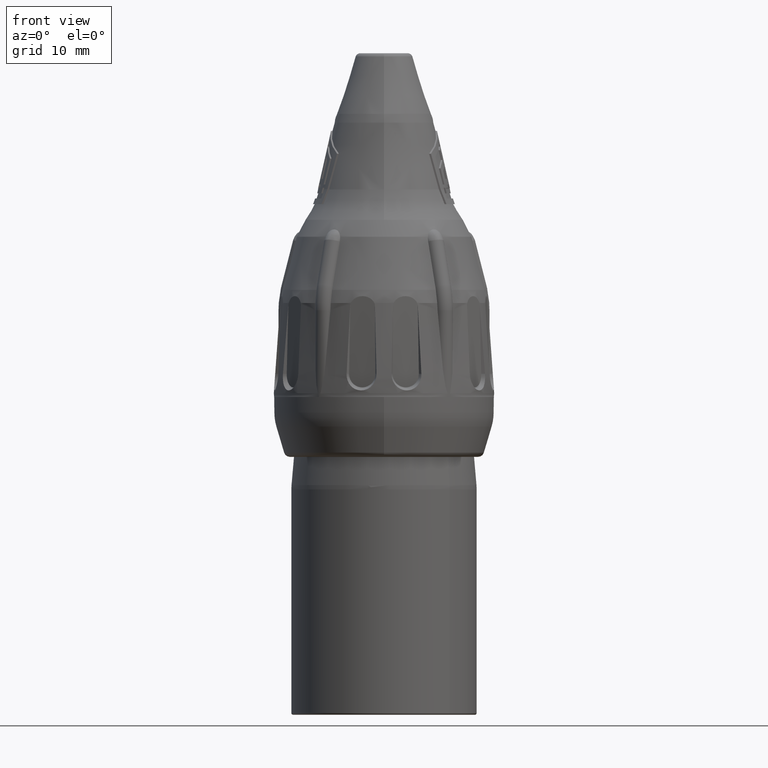
[diagram: clean part render]
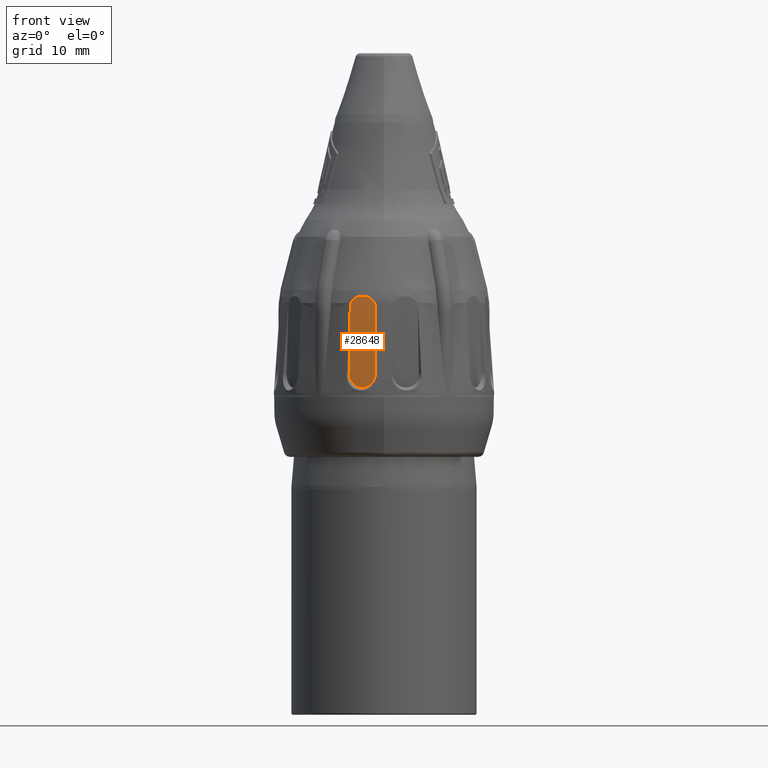
[diagram: same view with one face highlighted and labeled with its STEP entity id]
A machine part, front view. The second image highlights one B-rep face of the part: STEP entity #28648.
In plain terms, the highlighted planar face has unit normal (0.2079, 0.9779, -0.0209).
Its self-contained STEP definition (entity closure, byte-faithful):
#7028=CARTESIAN_POINT('',(-3.454664603485E0,-1.005264313082E1,
1.299690952390E1));
#7029=CARTESIAN_POINT('',(-3.444815660711E0,-1.005423184033E1,
1.302047937297E1));
#7030=CARTESIAN_POINT('',(-3.425061216991E0,-1.005742965509E1,
1.306722803874E1));
#7031=CARTESIAN_POINT('',(-3.405185936396E0,-1.006066997218E1,
1.311319138269E1));
#7032=CARTESIAN_POINT('',(-3.395216014916E0,-1.006230121728E1,
1.313597576435E1));
#7066=CARTESIAN_POINT('',(-9.910224505909E-1,-1.057332833490E1,
1.313597576435E1));
#7067=CARTESIAN_POINT('',(-9.812503105389E-1,-1.057589342830E1,
1.311318980547E1));
#7068=CARTESIAN_POINT('',(-9.617747332475E-1,-1.058101742830E1,
1.306722487191E1));
#7069=CARTESIAN_POINT('',(-9.424281580994E-1,-1.058613075787E1,
1.302047778412E1));
#7070=CARTESIAN_POINT('',(-9.327851648771E-1,-1.058868515324E1,
1.299690952390E1));
#9335=DIRECTION('',(7.472171850627E-3,-2.299698029162E-2,-9.997076100267E-1));
#9336=VECTOR('',#9335,7.104095729760E0);
#9337=CARTESIAN_POINT('',(-9.327851648771E-1,-1.058868515324E1,
1.299690952390E1));
#9338=LINE('',#9337,#9336);
#9339=CARTESIAN_POINT('',(-8.797021407411E-1,-1.075205790273E1,
5.894890960499E0));
#9340=CARTESIAN_POINT('',(-8.784835652471E-1,-1.075580829246E1,
5.731856809378E0));
#9341=CARTESIAN_POINT('',(-9.342679843016E-1,-1.075151779103E1,
5.378513405057E0));
#9342=CARTESIAN_POINT('',(-1.242207838608E0,-1.069668831225E1,
4.882358072112E0));
#9343=CARTESIAN_POINT('',(-1.729548920762E0,-1.059995019305E1,
4.562515385820E0));
#9344=CARTESIAN_POINT('',(-2.230846173197E0,-1.049530607604E1,
4.473330007023E0));
#9345=CARTESIAN_POINT('',(-2.731366597958E0,-1.038700727216E1,
4.562515385820E0));
#9346=CARTESIAN_POINT('',(-3.215921767745E0,-1.027716246575E1,
4.882358072112E0));
#9347=CARTESIAN_POINT('',(-3.519539981014E0,-1.020200126443E1,
5.378513405057E0));
#9348=CARTESIAN_POINT('',(-3.572246687798E0,-1.018323126518E1,
5.731856809378E0));
#9349=CARTESIAN_POINT('',(-3.569608042759E0,-1.018030075298E1,
5.894890960499E0));
#9351=DIRECTION('',(1.617988321756E-2,1.796958078989E-2,9.997076100267E-1));
#9352=VECTOR('',#9351,7.104095729760E0);
#9353=CARTESIAN_POINT('',(-3.569608042759E0,-1.018030075298E1,
5.894890960499E0));
#9354=LINE('',#9353,#9352);
#9355=CARTESIAN_POINT('',(-9.910224505909E-1,-1.057332833490E1,
1.313597576435E1));
#9356=CARTESIAN_POINT('',(-1.031544126002E0,-1.056269178223E1,
1.323046123273E1));
#9357=CARTESIAN_POINT('',(-1.140632148409E0,-1.053572526616E1,
1.340693305953E1));
#9358=CARTESIAN_POINT('',(-1.414382547363E0,-1.047246740446E1,
1.364370271873E1));
#9359=CARTESIAN_POINT('',(-1.769421771416E0,-1.039360930559E1,
1.380210500159E1));
#9360=CARTESIAN_POINT('',(-2.188817480221E0,-1.030318173962E1,
1.386198159113E1));
#9361=CARTESIAN_POINT('',(-2.605309597416E0,-1.021590539985E1,
1.380352753407E1));
#9362=CARTESIAN_POINT('',(-2.964785194291E0,-1.014287372973E1,
1.364582361173E1));
#9363=CARTESIAN_POINT('',(-3.243406227746E0,-1.008876475671E1,
1.340703024296E1));
#9364=CARTESIAN_POINT('',(-3.353914739726E0,-1.006905879331E1,
1.323036206609E1));
#9365=CARTESIAN_POINT('',(-3.395216014916E0,-1.006230121728E1,
1.313597576435E1));
#13171=VERTEX_POINT('',#9339);
#13172=VERTEX_POINT('',#9349);
#13173=CARTESIAN_POINT('',(-3.454664603485E0,-1.005264313082E1,
1.299690952390E1));
#13174=VERTEX_POINT('',#13173);
#13175=CARTESIAN_POINT('',(-9.327851648771E-1,-1.058868515324E1,
1.299690952390E1));
#13176=VERTEX_POINT('',#13175);
#13225=VERTEX_POINT('',#7032);
#13226=VERTEX_POINT('',#7066);
#28632=CARTESIAN_POINT('',(-4.592604815017E0,-9.962856076467E0,
5.894890960499E0));
#28633=DIRECTION('',(2.078660923482E-1,9.779330768009E-1,-2.094241988336E-2));
#28634=DIRECTION('',(-9.781476007338E-1,2.079116908178E-1,0.E0));
#28635=AXIS2_PLACEMENT_3D('',#28632,#28633,#28634);
#28636=PLANE('',#28635);
#28637=ORIENTED_EDGE('',*,*,#24850,.T.);
#28639=ORIENTED_EDGE('',*,*,#28638,.T.);
#28641=ORIENTED_EDGE('',*,*,#28640,.T.);
#28643=ORIENTED_EDGE('',*,*,#28642,.T.);
#28644=ORIENTED_EDGE('',*,*,#24842,.T.);
#28645=ORIENTED_EDGE('',*,*,#25107,.F.);
#28646=EDGE_LOOP('',(#28637,#28639,#28641,#28643,#28644,#28645));
#28647=FACE_OUTER_BOUND('',#28646,.F.);
#7033=B_SPLINE_CURVE_WITH_KNOTS('',3,(#7028,#7029,#7030,#7031,#7032),
.UNSPECIFIED.,.F.,.F.,(4,1,4),(0.E0,5.E-1,1.E0),.UNSPECIFIED.);
#7071=B_SPLINE_CURVE_WITH_KNOTS('',3,(#7066,#7067,#7068,#7069,#7070),
.UNSPECIFIED.,.F.,.F.,(4,1,4),(0.E0,5.E-1,1.E0),.UNSPECIFIED.);
#9350=B_SPLINE_CURVE_WITH_KNOTS('',3,(#9339,#9340,#9341,#9342,#9343,#9344,#9345,
#9346,#9347,#9348,#9349),.UNSPECIFIED.,.F.,.F.,(4,1,1,1,1,1,1,1,4),(0.E0,
1.25E-1,2.5E-1,3.75E-1,5.E-1,6.25E-1,7.5E-1,8.75E-1,1.E0),.UNSPECIFIED.);
#9366=B_SPLINE_CURVE_WITH_KNOTS('',3,(#9355,#9356,#9357,#9358,#9359,#9360,#9361,
#9362,#9363,#9364,#9365),.UNSPECIFIED.,.F.,.F.,(4,1,1,1,1,1,1,1,4),(0.E0,
1.25E-1,2.5E-1,3.75E-1,5.E-1,6.25E-1,7.5E-1,8.75E-1,1.E0),.UNSPECIFIED.);
#24842=EDGE_CURVE('',#13174,#13225,#7033,.T.);
#24850=EDGE_CURVE('',#13226,#13176,#7071,.T.);
#25107=EDGE_CURVE('',#13226,#13225,#9366,.T.);
#28638=EDGE_CURVE('',#13176,#13171,#9338,.T.);
#28640=EDGE_CURVE('',#13171,#13172,#9350,.T.);
#28642=EDGE_CURVE('',#13172,#13174,#9354,.T.);
#28648=ADVANCED_FACE('',(#28647),#28636,.F.);